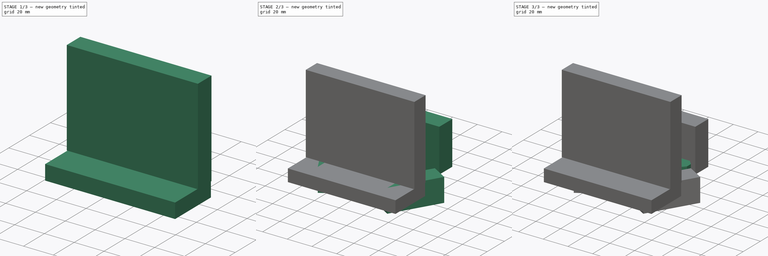
[diagram: build sequence overview — one tinted view per stage of 3, left to right]
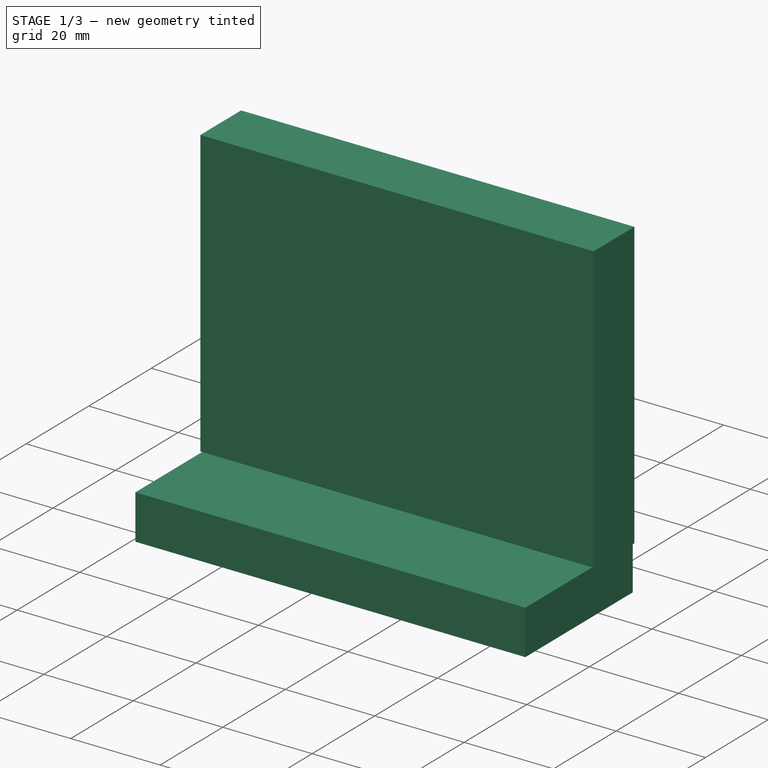
[diagram: stage 1 of 3 — iso view after this stage's code; geometry added in this stage tinted green]
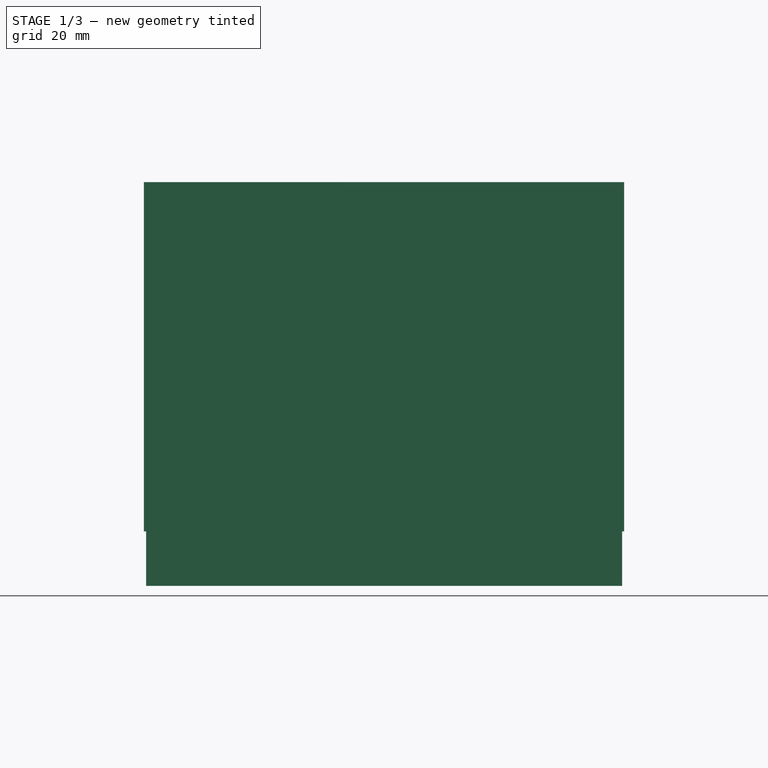
[diagram: stage 1 of 3 — front view after this stage's code; geometry added in this stage tinted green]
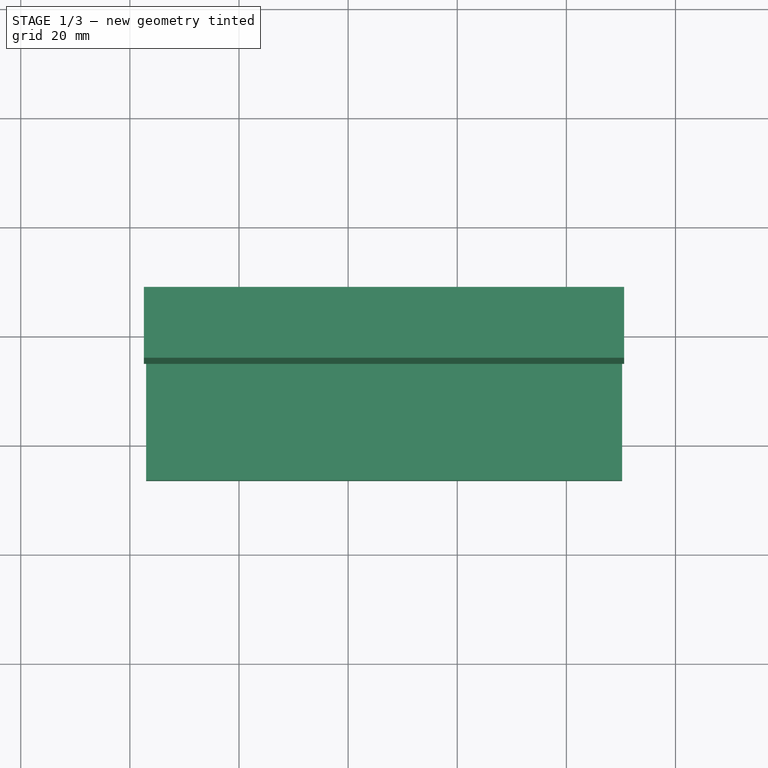
[diagram: stage 1 of 3 — top view after this stage's code; geometry added in this stage tinted green]
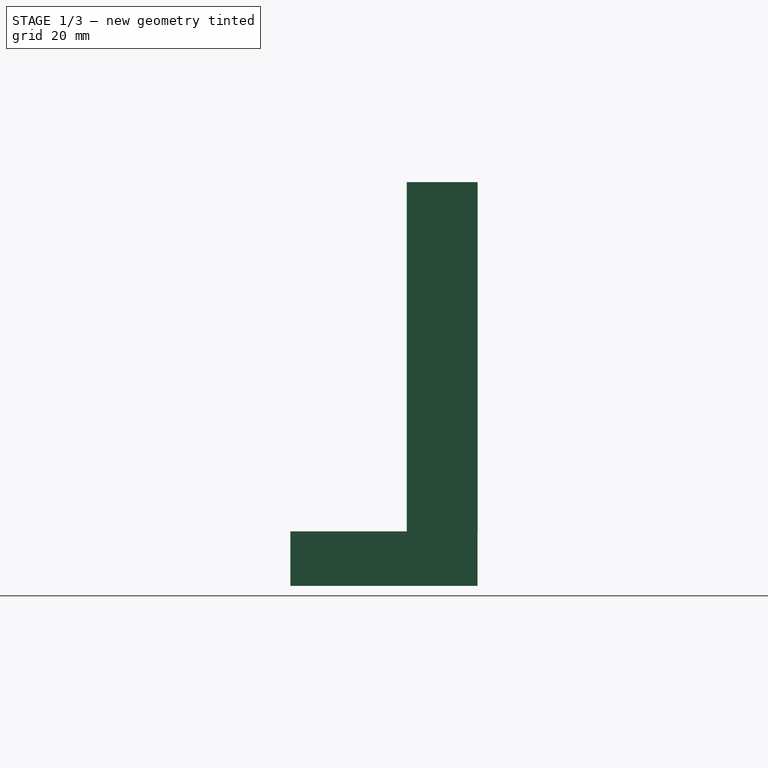
[diagram: stage 1 of 3 — right view after this stage's code; geometry added in this stage tinted green]
FCSTD DOCUMENT  (FreeCAD 0.17R13522 (Git))
Label: Suporte_1
License: All rights reserved
LicenseURL: http://en.wikipedia.org/wiki/All_rights_reserved
objects: Sketcher::SketchObject×6, Part::Extrusion×6, PartDesign::Body×1, Part::MultiFuse×1
note: 14 computed .brp shape members not serialized (recipe doc carries the construction recipe); baked Part::Feature solids carry a one-line shape summary decoded from their .brp

FEATURE [Sketcher::SketchObject] Sketch004
  MapMode = 5
  Support = -> [XY_Plane]
  sketch-geometry (4):
    g0: LineSegment StartX=39.98 StartY=47.8377 StartZ=0 EndX=39.98 EndY=13.5387 EndZ=0
    g1: LineSegment StartX=39.98 StartY=13.5387 StartZ=0 EndX=127.229 EndY=13.5387 EndZ=0
    g2: LineSegment StartX=127.229 StartY=13.5387 StartZ=0 EndX=127.229 EndY=47.8377 EndZ=0
    g3: LineSegment StartX=127.229 StartY=47.8377 StartZ=0 EndX=39.98 EndY=47.8377 EndZ=0
  constraints (8):
    c: Coincident(g0,g1)
    c: Coincident(g1,g2)
    c: Coincident(g2,g3)
    c: Coincident(g3,g0)
    c: Perpendicular(g2,g1)
    c: Perpendicular(g3,g2)
    c: Perpendicular(g0,g3)
    c: Horizontal(g3)
FEATURE [Part::Extrusion] Extrude004
  Base = -> Sketch004
  Dir = (0,0,1)
  DirMode = 2
  FaceMakerClass = Part::FaceMakerBullseye
  LengthFwd = 10
  LengthRev = 0
  Placement = pos=(3,0,9) rot=(0,0,1;0rad)
  Solid = true
  Symmetric = false
FEATURE [Sketcher::SketchObject] Sketch005
  MapMode = 5
  Support = -> [XY_Plane]
  sketch-geometry (4):
    g0: LineSegment StartX=39.5777 StartY=47.8687 StartZ=0 EndX=39.5777 EndY=34.8687 EndZ=0
    g1: LineSegment StartX=39.5777 StartY=34.8687 StartZ=0 EndX=127.578 EndY=34.8687 EndZ=0
    g2: LineSegment StartX=127.578 StartY=34.8687 StartZ=0 EndX=127.578 EndY=47.8687 EndZ=0
    g3: LineSegment StartX=127.578 StartY=47.8687 StartZ=0 EndX=39.5777 EndY=47.8687 EndZ=0
  constraints (10):
    c: Coincident(g0,g1)
    c: Coincident(g1,g2)
    c: Coincident(g2,g3)
    c: Coincident(g3,g0)
    c: Perpendicular(g2,g1)
    c: Perpendicular(g3,g2)
    c: Perpendicular(g0,g3)
    c: Horizontal(g3)
    c: DistanceY(g2,g2) = 13
    c: DistanceX(g3,g3) = 88
FEATURE [PartDesign::Body] Body
  Group = -> [Sketch,Sketch002,Sketch003,Sketch004,Sketch005]
  Origin = -> Origin
FEATURE [Part::Extrusion] Extrude005
  Base = -> Sketch005
  Dir = (0,0,1)
  DirMode = 2
  FaceMakerClass = Part::FaceMakerBullseye
  LengthFwd = 64
  LengthRev = 0
  Placement = pos=(3,0,19) rot=(0,0,1;0rad)
  Solid = true
  Symmetric = false
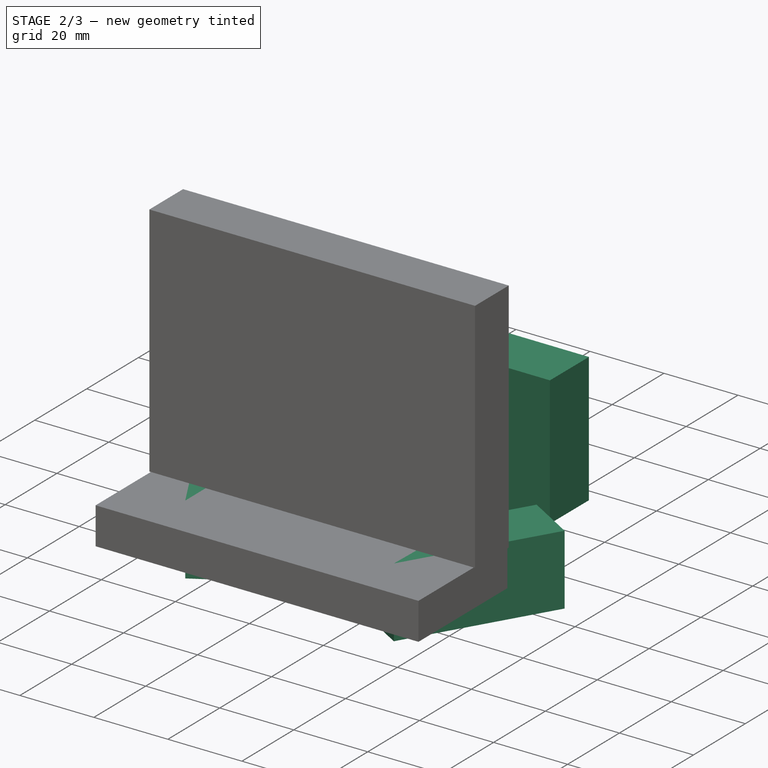
[diagram: stage 2 of 3 — iso view after this stage's code; geometry added in this stage tinted green]
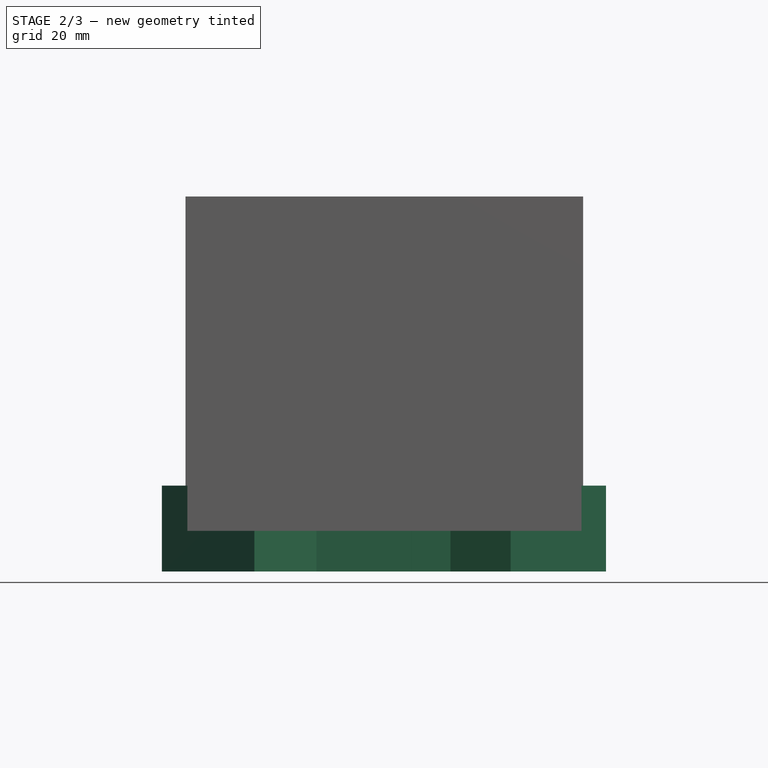
[diagram: stage 2 of 3 — front view after this stage's code; geometry added in this stage tinted green]
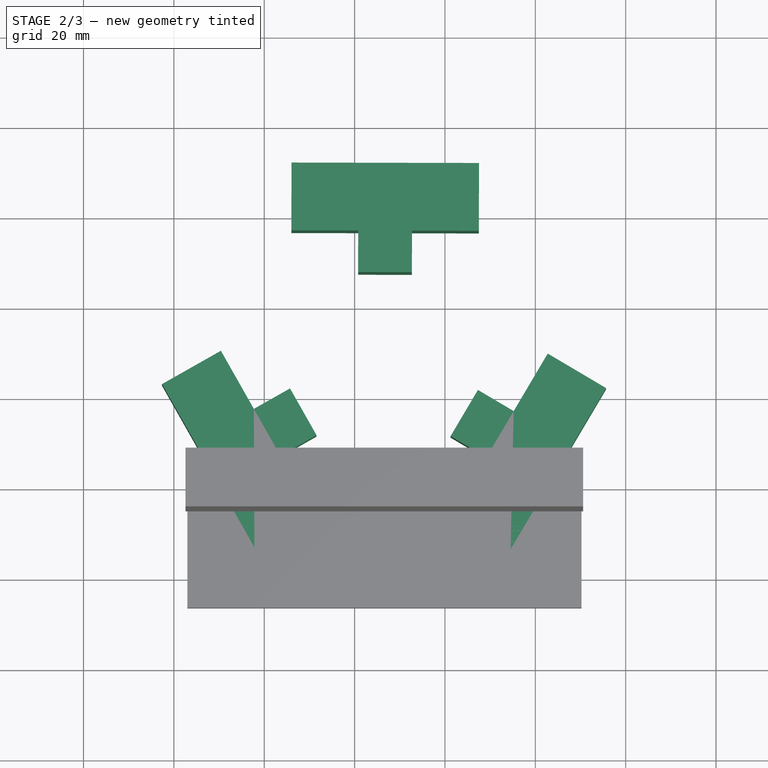
[diagram: stage 2 of 3 — top view after this stage's code; geometry added in this stage tinted green]
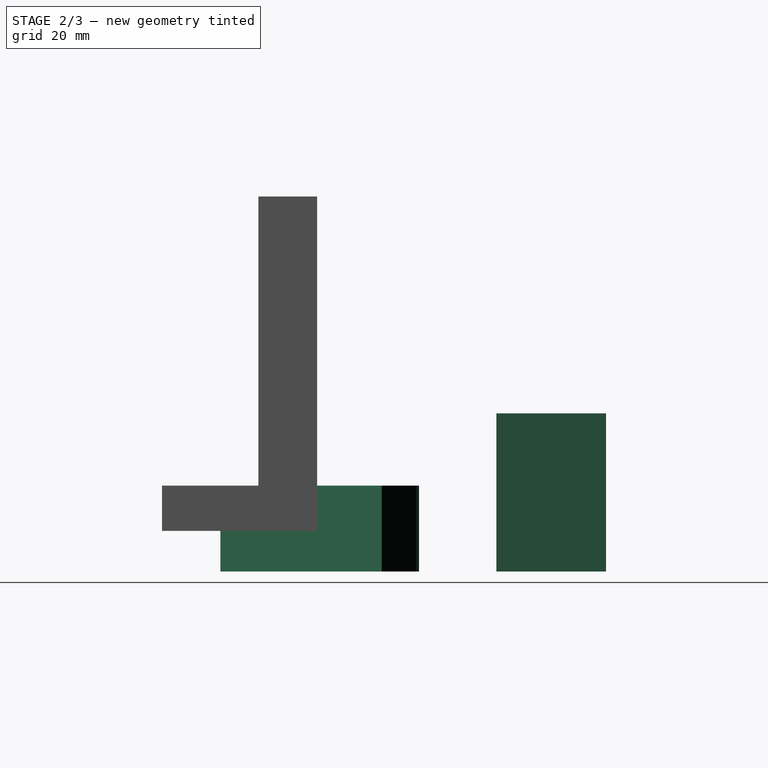
[diagram: stage 2 of 3 — right view after this stage's code; geometry added in this stage tinted green]
FEATURE [Part::Extrusion] Extrude001
  Base = -> Sketch
  Dir = (0,0,1)
  DirMode = 2
  FaceMakerClass = Part::FaceMakerBullseye
  LengthFwd = 19
  LengthRev = 0
  Solid = true
  Symmetric = false
FEATURE [Sketcher::SketchObject] Sketch002
  MapMode = 5
  Support = -> [XY_Plane]
  sketch-geometry (8):
    g0: LineSegment StartX=114.524 StartY=26.4586 StartZ=0 EndX=101.615 EndY=34.0979 EndZ=0
    g1: LineSegment StartX=101.615 StartY=34.0979 StartZ=0 EndX=109.153 EndY=46.8348 EndZ=0
    g2: LineSegment StartX=109.153 StartY=46.8348 StartZ=0 EndX=101.235 EndY=51.5202 EndZ=0
    g3: LineSegment StartX=101.235 StartY=51.5202 StartZ=0 EndX=107.296 EndY=61.7613 EndZ=0
    g4: LineSegment StartX=107.296 StartY=61.7613 StartZ=0 EndX=115.213 EndY=57.0759 EndZ=0
    g5: LineSegment StartX=115.213 StartY=57.0759 StartZ=0 EndX=122.751 EndY=69.8127 EndZ=0
    g6: LineSegment StartX=122.751 StartY=69.8127 StartZ=0 EndX=135.66 EndY=62.1734 EndZ=0
    g7: LineSegment StartX=135.66 StartY=62.1734 StartZ=0 EndX=114.524 EndY=26.4586 EndZ=0
  constraints (21):
    c: Coincident(g0,g1)
    c: Coincident(g1,g2)
    c: Coincident(g2,g3)
    c: Coincident(g3,g4)
    c: Coincident(g4,g5)
    c: Coincident(g5,g6)
    c: Coincident(g6,g7)
    c: Coincident(g7,g0)
    c: Equal(g2,g4)
    c: Equal(g1,g5)
    c: Perpendicular(g1,g2)
    c: Perpendicular(g2,g3)
    c: Perpendicular(g3,g4)
    c: Perpendicular(g5,g4)
    c: Perpendicular(g6,g5)
    c: Perpendicular(g7,g6)
    c: Perpendicular(g7,g0)
    c: Distance(g2,g3) = 11.9
    c: Distance(g2,g1) = 9.2
    c: Distance(g0,g1) = 14.8
    c: Distance(g0,g0) = 15
FEATURE [Part::Extrusion] Extrude002
  Base = -> Sketch002
  Dir = (0,0,1)
  DirMode = 2
  FaceMakerClass = Part::FaceMakerBullseye
  LengthFwd = 19
  LengthRev = 0
  Solid = true
  Symmetric = false
FEATURE [Sketcher::SketchObject] Sketch003
  MapMode = 5
  Support = -> [XY_Plane]
  sketch-geometry (8):
    g0: LineSegment StartX=107.535 StartY=111.722 StartZ=0 EndX=107.501 EndY=96.7222 EndZ=0
    g1: LineSegment StartX=107.501 StartY=96.7222 StartZ=0 EndX=92.7007 EndY=96.7558 EndZ=0
    g2: LineSegment StartX=92.7007 StartY=96.7558 StartZ=0 EndX=92.6798 EndY=87.5559 EndZ=0
    g3: LineSegment StartX=92.6798 StartY=87.5559 StartZ=0 EndX=80.7798 EndY=87.5829 EndZ=0
    g4: LineSegment StartX=80.7798 StartY=87.5829 StartZ=0 EndX=80.8007 EndY=96.7829 EndZ=0
    g5: LineSegment StartX=80.8007 StartY=96.7829 StartZ=0 EndX=66.0008 EndY=96.8166 EndZ=0
    g6: LineSegment StartX=66.0008 StartY=96.8166 StartZ=0 EndX=66.0349 EndY=111.817 EndZ=0
    g7: LineSegment StartX=66.0349 StartY=111.817 StartZ=0 EndX=107.535 EndY=111.722 EndZ=0
  constraints (21):
    c: Coincident(g0,g1)
    c: Coincident(g1,g2)
    c: Coincident(g2,g3)
    c: Coincident(g3,g4)
    c: Coincident(g4,g5)
    c: Coincident(g5,g6)
    c: Coincident(g6,g7)
    c: Coincident(g7,g0)
    c: Equal(g2,g4)
    c: Equal(g1,g5)
    c: Perpendicular(g1,g2)
    c: Perpendicular(g2,g3)
    c: Perpendicular(g3,g4)
    c: Perpendicular(g5,g4)
    c: Perpendicular(g6,g5)
    c: Perpendicular(g7,g6)
    c: Perpendicular(g7,g0)
    c: Distance(g2,g3) = 11.9
    c: Distance(g2,g1) = 9.2
    c: Distance(g0,g1) = 14.8
    c: Distance(g0,g0) = 15
FEATURE [Part::Extrusion] Extrude003
  Base = -> Sketch003
  Dir = (0,0,1)
  DirMode = 2
  FaceMakerClass = Part::FaceMakerBullseye
  LengthFwd = 35
  LengthRev = 0
  Solid = true
  Symmetric = false
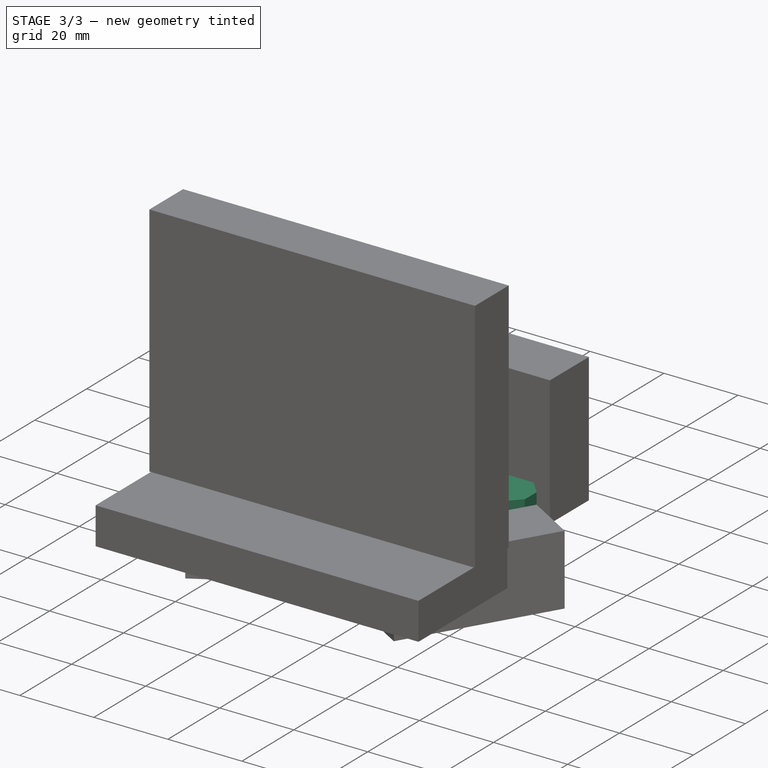
[diagram: stage 3 of 3 — iso view after this stage's code; geometry added in this stage tinted green]
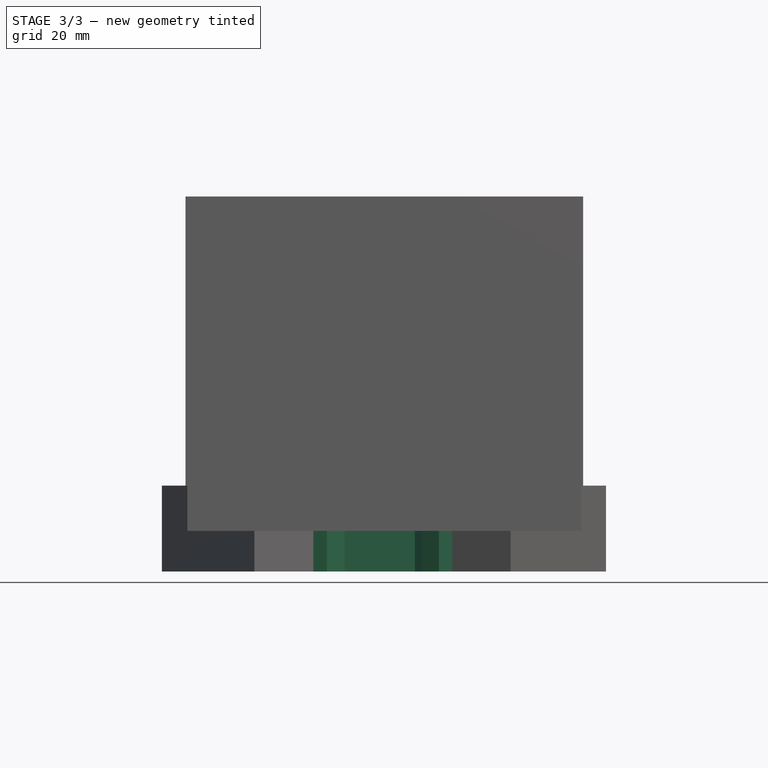
[diagram: stage 3 of 3 — front view after this stage's code; geometry added in this stage tinted green]
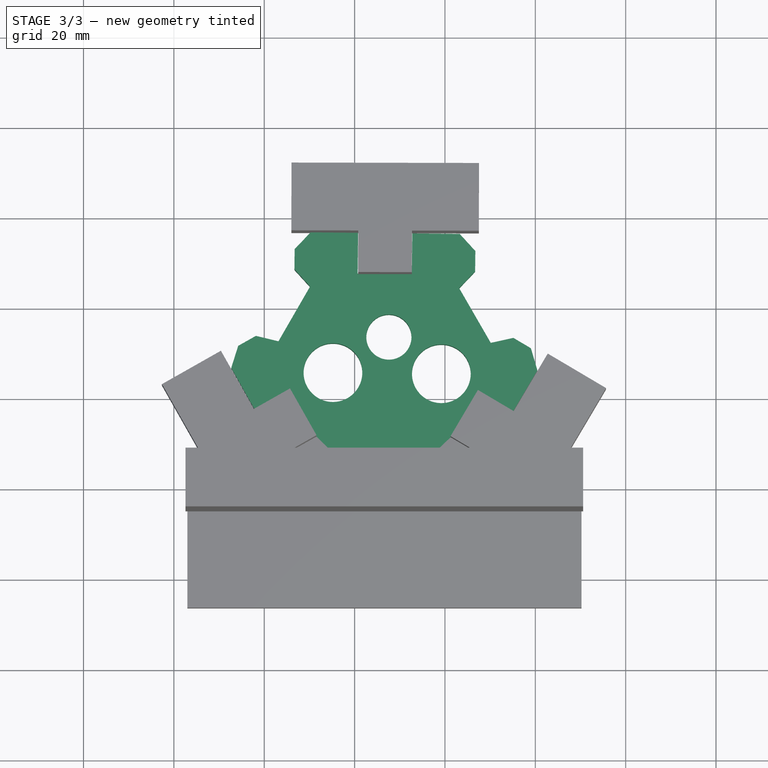
[diagram: stage 3 of 3 — top view after this stage's code; geometry added in this stage tinted green]
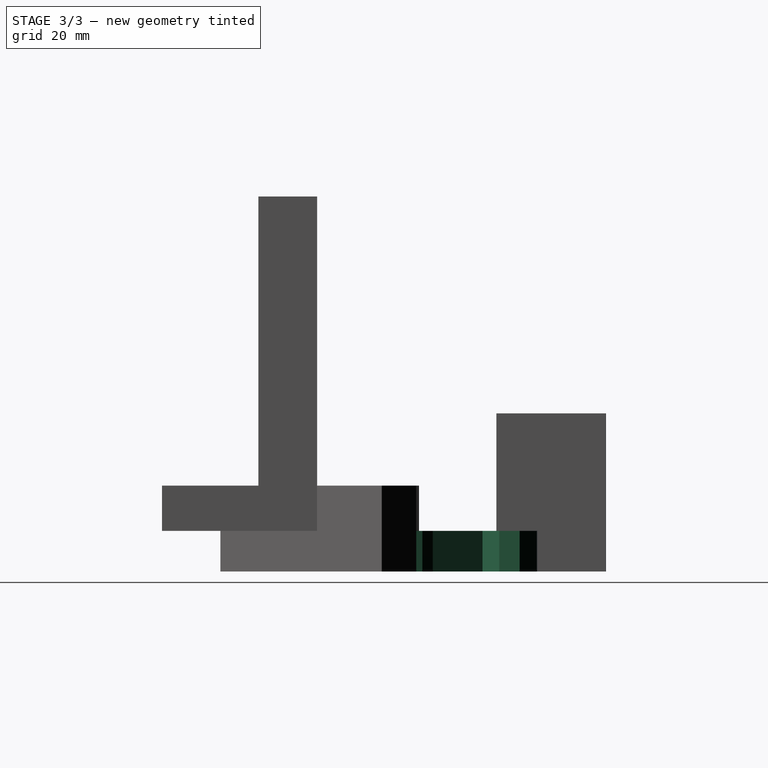
[diagram: stage 3 of 3 — right view after this stage's code; geometry added in this stage tinted green]
FEATURE [Sketcher::SketchObject] Sketch001
  Placement = pos=(11,13,0) rot=(0,0,1;0rad)
  sketch-geometry (39):
    g0: LineSegment StartX=92.1382 StartY=71.478 StartZ=0 EndX=99.1382 EndY=59.3536 EndZ=0
    g1: LineSegment StartX=68.3387 StartY=30.9498 StartZ=0 EndX=82.3387 EndY=30.9498 EndZ=0
    g2: LineSegment StartX=59.14 StartY=71.8249 StartZ=0 EndX=52.14 EndY=59.7005 EndZ=0
    g3: LineSegment StartX=82.3387 StartY=30.9498 StartZ=0 EndX=83.7847 EndY=26.0283 EndZ=0
    g4: LineSegment StartX=83.7847 StartY=26.0283 StartZ=0 EndX=87.6579 EndY=23.7374 EndZ=0
    g5: LineSegment StartX=87.6579 StartY=23.7374 StartZ=0 EndX=92.6674 EndY=24.8409 EndZ=0
    g6: LineSegment StartX=92.6674 StartY=24.8409 StartZ=0 EndX=98.0127 EndY=33.8785 EndZ=0
    g7: LineSegment StartX=98.0127 StartY=33.8785 StartZ=0 EndX=90.2662 EndY=38.4602 EndZ=0
    g8: LineSegment StartX=90.2662 StartY=38.4602 StartZ=0 EndX=96.3751 EndY=48.7888 EndZ=0
    g9: LineSegment StartX=96.3751 StartY=48.7888 StartZ=0 EndX=104.122 EndY=44.2072 EndZ=0
    g10: LineSegment StartX=104.122 StartY=44.2072 StartZ=0 EndX=109.467 EndY=53.2447 EndZ=0
    g11: LineSegment StartX=109.467 StartY=53.2447 StartZ=0 EndX=108.021 EndY=58.1663 EndZ=0
    g12: LineSegment StartX=108.021 StartY=58.1663 StartZ=0 EndX=104.148 EndY=60.4571 EndZ=0
    g13: LineSegment StartX=104.148 StartY=60.4571 StartZ=0 EndX=99.1382 EndY=59.3536 EndZ=0
    g14: LineSegment StartX=92.1382 StartY=71.478 StartZ=0 EndX=95.6774 EndY=75.191 EndZ=0
    g15: LineSegment StartX=95.6774 StartY=75.191 StartZ=0 EndX=95.7247 EndY=79.6908 EndZ=0
    g16: LineSegment StartX=95.7247 StartY=79.6908 StartZ=0 EndX=92.2644 EndY=83.4773 EndZ=0
    g17: LineSegment StartX=92.2644 StartY=83.4773 StartZ=0 EndX=81.7649 EndY=83.5877 EndZ=0
    g18: LineSegment StartX=81.7649 StartY=83.5877 StartZ=0 EndX=81.6703 EndY=74.5882 EndZ=0
    g19: LineSegment StartX=81.6703 StartY=74.5882 StartZ=0 EndX=69.671 EndY=74.7143 EndZ=0
    g20: LineSegment StartX=69.671 StartY=74.7143 StartZ=0 EndX=69.7656 EndY=83.7138 EndZ=0
    g21: LineSegment StartX=69.7656 StartY=83.7138 StartZ=0 EndX=59.2662 EndY=83.8242 EndZ=0
    g22: LineSegment StartX=59.2662 StartY=83.8242 StartZ=0 EndX=55.727 EndY=80.1112 EndZ=0
    g23: LineSegment StartX=55.727 StartY=80.1112 StartZ=0 EndX=55.6796 EndY=75.6115 EndZ=0
    g24: LineSegment StartX=55.6796 StartY=75.6115 StartZ=0 EndX=59.14 EndY=71.8249 EndZ=0
    g25: LineSegment StartX=52.14 StartY=59.7005 StartZ=0 EndX=47.1537 EndY=60.9041 EndZ=0
    g26: LineSegment StartX=47.1537 StartY=60.9041 StartZ=0 EndX=43.2331 EndY=58.6952 EndZ=0
    g27: LineSegment StartX=43.2331 StartY=58.6952 StartZ=0 EndX=41.6889 EndY=53.8036 EndZ=0
    g28: LineSegment StartX=41.6889 StartY=53.8036 StartZ=0 EndX=46.8412 EndY=44.6589 EndZ=0
    g29: LineSegment StartX=46.8412 StartY=44.6589 StartZ=0 EndX=54.6823 EndY=49.0767 EndZ=0
    g30: LineSegment StartX=54.6823 StartY=49.0767 StartZ=0 EndX=60.5727 EndY=38.6219 EndZ=0
    g31: LineSegment StartX=60.5727 StartY=38.6219 StartZ=0 EndX=52.7316 EndY=34.2041 EndZ=0
    g32: LineSegment StartX=52.7316 StartY=34.2041 StartZ=0 EndX=57.8876 EndY=25.0529 EndZ=0
    g33: LineSegment StartX=57.8876 StartY=25.0529 StartZ=0 EndX=62.874 EndY=23.8493 EndZ=0
    g34: LineSegment StartX=62.874 StartY=23.8493 StartZ=0 EndX=66.7945 EndY=26.0582 EndZ=0
    g35: LineSegment StartX=66.7945 StartY=26.0582 StartZ=0 EndX=68.3387 EndY=30.9498 EndZ=0
    g36: Circle CenterX=76.5882 CenterY=60.6409 CenterZ=0 NormalX=0 NormalY=0 NormalZ=1 AngleXU=0 Radius=5
    g37: Circle CenterX=64.202 CenterY=52.7706 CenterZ=0 NormalX=0 NormalY=0 NormalZ=1 AngleXU=0 Radius=6.5
    g38: Circle CenterX=88.2006 CenterY=52.5183 CenterZ=0 NormalX=0 NormalY=0 NormalZ=1 AngleXU=0 Radius=6.5
  constraints (112):
    c: Angle(g0,g1) = 1.0472
    c: Equal(g2,g0)
    c: Equal(g0,g1)
    c: Distance(g2,g2) = 14
    c: Horizontal(g1)
    c: Angle(g1,g2) = 1.0472
    c: Distance(g0,g1) = 33
    c: Distance(g0,g2) = 33
    c: Distance(g2,g1) = 33
    c: Coincident(g1,g3)
    c: Coincident(g3,g4)
    c: Coincident(g4,g5)
    c: Coincident(g5,g6)
    c: Coincident(g6,g7)
    c: Coincident(g7,g8)
    c: Coincident(g8,g9)
    c: Coincident(g9,g10)
    c: Coincident(g10,g11)
    c: Coincident(g11,g12)
    c: Coincident(g12,g13)
    c: Coincident(g13,g0)
    c: Equal(g10,g6)
    c: Perpendicular(g8,g9)
    c: Perpendicular(g7,g8)
    c: Perpendicular(g10,g9)
    c: Perpendicular(g6,g7)
    c: Equal(g7,g9)
    c: Distance(g7,g6) = 9
    c: Distance(g0,g10) = 12
    c: Distance(g1,g5) = 12
    c: Distance(g11,g9) = 14
    c: Distance(g12,g9) = 14
    c: Distance(g5,g10) = 33
    c: Distance(g4,g7) = 14
    c: Distance(g3,g7) = 14
    c: Equal(g4,g12)
    c: Distance(g3,g4) = 4.5
    c: Equal(g4,g12)
    c: Equal(g5,g3)
    c: Equal(g3,g11)
    c: Equal(g11,g13)
    c: Distance(g8,g7) = 12
    c: Coincident(g0,g14)
    c: Coincident(g14,g15)
    c: Coincident(g15,g16)
    c: Coincident(g16,g17)
    c: Coincident(g17,g18)
    c: Coincident(g18,g19)
    c: Coincident(g19,g20)
    c: Coincident(g20,g21)
    c: Coincident(g21,g22)
    c: Coincident(g22,g23)
    c: Coincident(g23,g24)
    c: Coincident(g24,g2)
    c: Distance(g16,g21) = 33
    c: Distance(g19,g18) = 12
    c: Perpendicular(g20,g19)
    c: Perpendicular(g18,g19)
    c: Perpendicular(g18,g17)
    c: Perpendicular(g21,g20)
    c: Equal(g18,g20)
    c: Equal(g21,g17)
    c: Distance(g18,g17) = 9
    c: Distance(g0,g16) = 12
    c: Distance(g2,g21) = 12
    c: Distance(g22,g20) = 14
    c: Distance(g23,g20) = 14
    c: Distance(g15,g18) = 14
    c: Distance(g14,g18) = 14
    c: Equal(g14,g16)
    c: Equal(g16,g22)
    c: Equal(g22,g24)
    c: Equal(g23,g15)
    c: Distance(g23,g22) = 4.5
    c: Coincident(g2,g25)
    c: Coincident(g25,g26)
    c: Coincident(g26,g27)
    c: Coincident(g27,g28)
    c: Coincident(g28,g29)
    c: Coincident(g29,g30)
    c: Coincident(g30,g31)
    c: Coincident(g31,g32)
    c: Coincident(g32,g33)
    c: Coincident(g33,g34)
    c: Coincident(g34,g35)
    c: Coincident(g35,g1)
    c: Distance(g28,g29) = 9
    c: Equal(g29,g31)
    c: Distance(g29,g30) = 12
    c: Perpendicular(g30,g29)
    c: Perpendicular(g31,g30)
    c: Perpendicular(g29,g28)
    c: Perpendicular(g32,g31)
    c: Distance(g27,g32) = 33
    c: Distance(g2,g27) = 12
    c: Distance(g32,g1) = 12
    c: Distance(g26,g29) = 14
    c: Distance(g25,g29) = 14
    c: Distance(g34,g31) = 14
    c: Distance(g33,g31) = 14
    c: Equal(g26,g34)
    c: Distance(g25,g26) = 4.5
    c: Equal(g25,g27)
    c: Equal(g27,g33)
    c: Equal(g33,g35)
    c: Radius(g37) = 6.5
    c: Radius(g38) = 6.5
    c: Radius(g36) = 5
    c: Distance(g36,g19) = 14
    c: Distance(g37,g38) = 24
    c: Distance(g38,g17) = 31
    c: Distance(g37,g21) = 31
FEATURE [Sketcher::SketchObject] Sketch
  MapMode = 5
  Support = -> [XY_Plane]
  sketch-geometry (8):
    g0: LineSegment StartX=37.3535 StartY=63.0419 StartZ=0 EndX=50.4036 EndY=70.4376 EndZ=0
    g1: LineSegment StartX=50.4036 StartY=70.4376 StartZ=0 EndX=57.7007 EndY=57.5616 EndZ=0
    g2: LineSegment StartX=57.7007 StartY=57.5616 StartZ=0 EndX=65.7047 EndY=62.0976 EndZ=0
    g3: LineSegment StartX=65.7047 StartY=62.0976 StartZ=0 EndX=71.572 EndY=51.7446 EndZ=0
    g4: LineSegment StartX=71.572 StartY=51.7446 StartZ=0 EndX=63.5679 EndY=47.2085 EndZ=0
    g5: LineSegment StartX=63.5679 StartY=47.2085 StartZ=0 EndX=70.8651 EndY=34.3325 EndZ=0
    g6: LineSegment StartX=70.8651 StartY=34.3325 StartZ=0 EndX=57.815 EndY=26.9368 EndZ=0
    g7: LineSegment StartX=57.815 StartY=26.9368 StartZ=0 EndX=37.3535 EndY=63.0419 EndZ=0
  constraints (21):
    c: Coincident(g0,g1)
    c: Coincident(g1,g2)
    c: Coincident(g2,g3)
    c: Coincident(g3,g4)
    c: Coincident(g4,g5)
    c: Coincident(g5,g6)
    c: Coincident(g6,g7)
    c: Coincident(g7,g0)
    c: Equal(g2,g4)
    c: Equal(g1,g5)
    c: Perpendicular(g1,g2)
    c: Perpendicular(g2,g3)
    c: Perpendicular(g3,g4)
    c: Perpendicular(g5,g4)
    c: Perpendicular(g6,g5)
    c: Perpendicular(g7,g6)
    c: Perpendicular(g7,g0)
    c: Distance(g2,g3) = 11.9
    c: Distance(g2,g1) = 9.2
    c: Distance(g0,g1) = 14.8
    c: Distance(g0,g0) = 15
FEATURE [Part::Extrusion] Extrude
  Base = -> Sketch001
  Dir = (0,0,1)
  DirMode = 2
  FaceMakerClass = Part::FaceMakerBullseye
  LengthFwd = 9
  LengthRev = 0
  Solid = true
  Symmetric = false
FEATURE [Part::MultiFuse] Fusion  label="SuporteTeste"
  Shapes = -> [Extrude005,Extrude004,Extrude002,Extrude001,Extrude003]
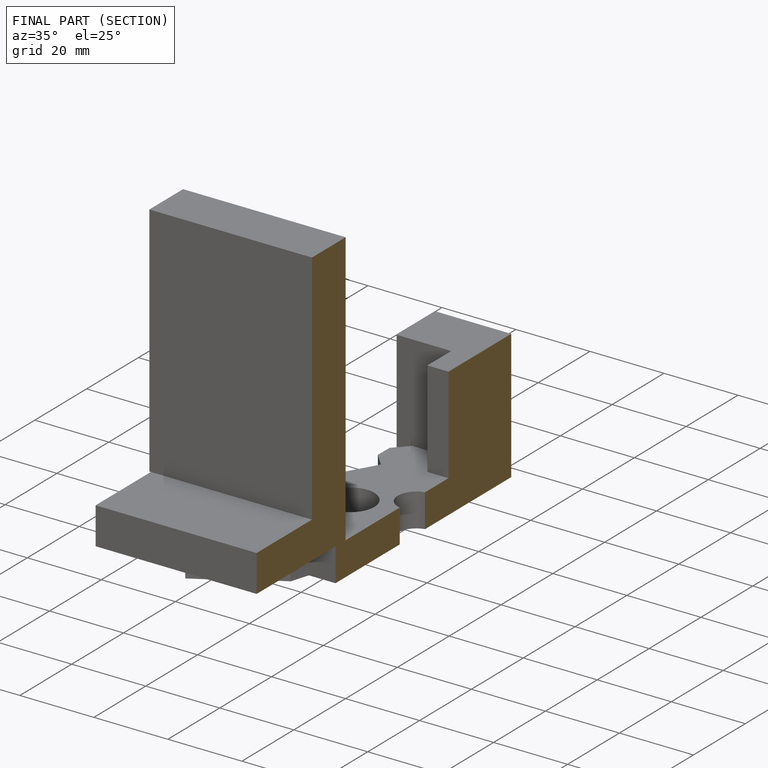
[diagram: finished part — half-section view (interior)]
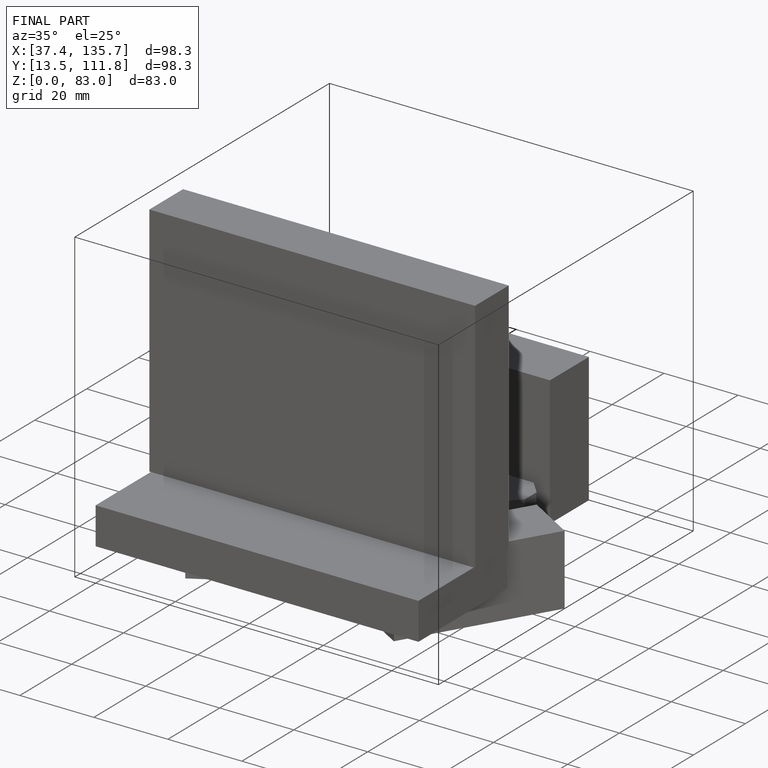
[diagram: finished part — iso view with bounding-box wireframe]
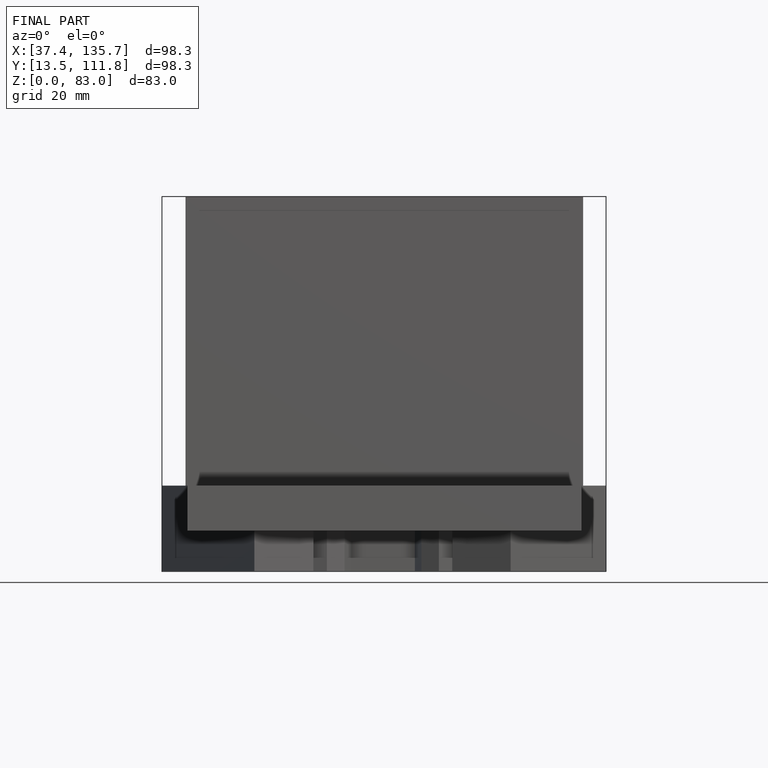
[diagram: finished part — front view with bounding-box wireframe]
